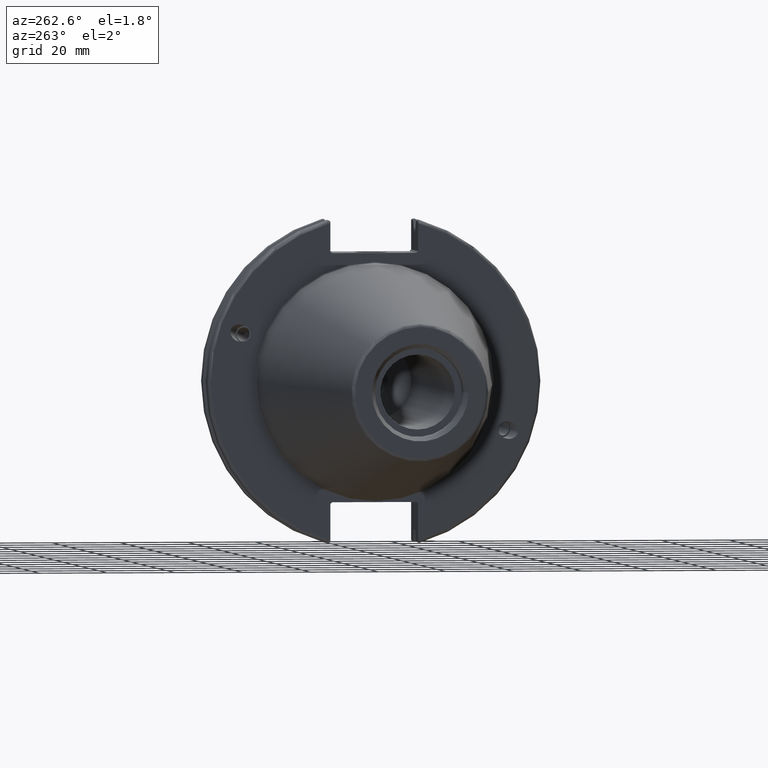
[diagram: clean part render]
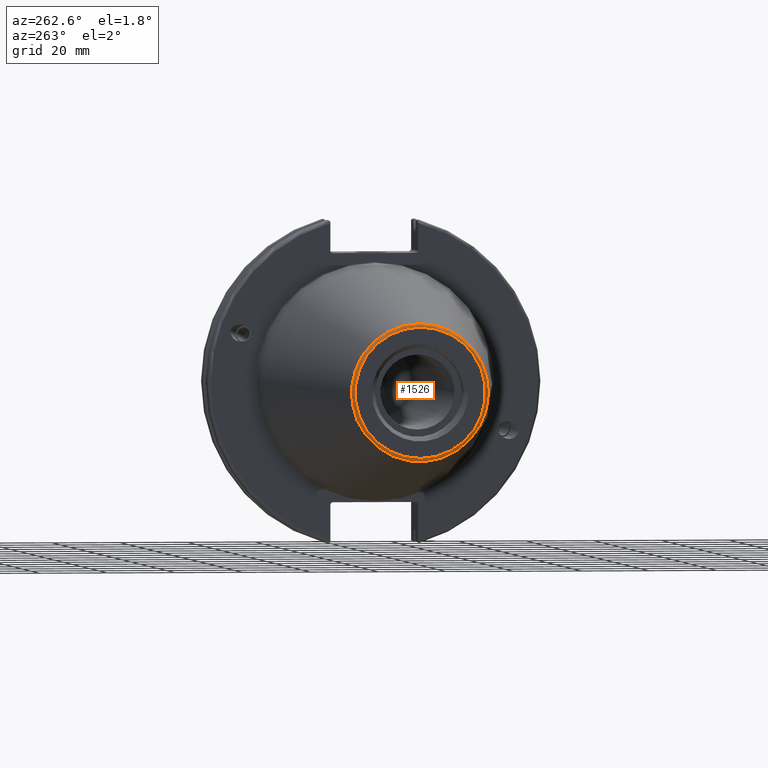
[diagram: same view with one face highlighted and labeled with its STEP entity id]
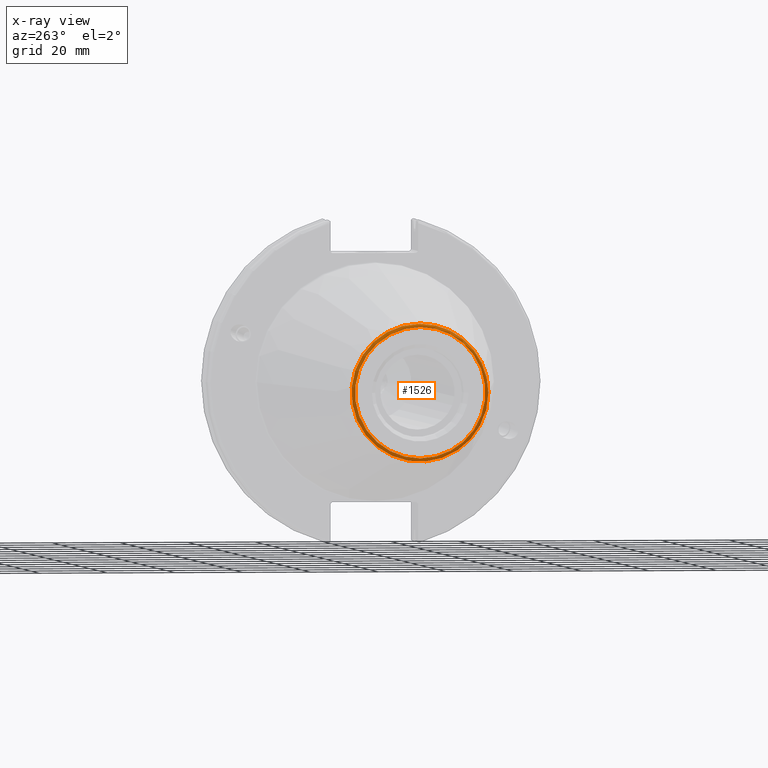
[diagram: x-ray of the same camera — body ghosted, the highlighted face saturated]
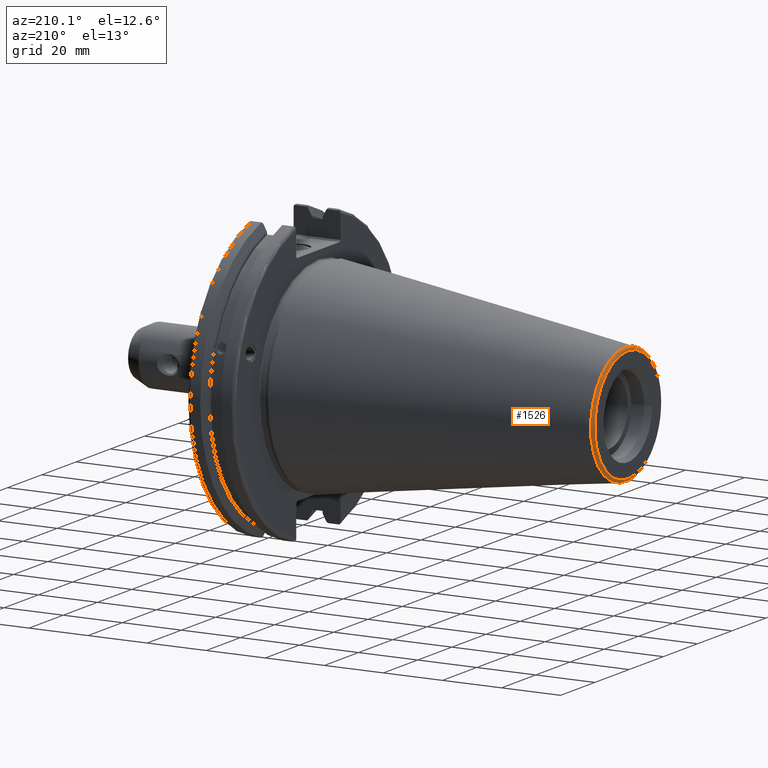
[diagram: same view with one face highlighted and labeled with its STEP entity id]
A machine part, auxiliary view. The second image highlights one B-rep face of the part: STEP entity #1526.
The next image is the same camera in x-ray: the body ghosted, the highlighted face saturated — about 0% of this face is hidden behind the body in this view.
A second angle (auxiliary view) of the same face is appended — the face is thin or edge-on in the first view.
In plain terms, the highlighted toroidal blend (fillet) surface has major radius 19.2436 mm and minor (blend) radius 1 mm.
Its self-contained STEP definition (entity closure, byte-faithful):
#97=TOROIDAL_SURFACE('',#1696,19.2435889303637,1.);
#178=FACE_OUTER_BOUND('',#280,.T.);
#280=EDGE_LOOP('',(#1320,#1321,#1322,#1323,#1324));
#374=CIRCLE('',#1697,20.233121911427);
#375=CIRCLE('',#1698,20.233121911427);
#376=CIRCLE('',#1699,1.);
#377=CIRCLE('',#1700,19.2435889303637);
#759=VERTEX_POINT('',#3102);
#760=VERTEX_POINT('',#3103);
#761=VERTEX_POINT('',#3106);
#964=EDGE_CURVE('',#759,#760,#374,.T.);
#965=EDGE_CURVE('',#760,#759,#375,.T.);
#966=EDGE_CURVE('',#759,#761,#376,.T.);
#967=EDGE_CURVE('',#761,#761,#377,.T.);
#1320=ORIENTED_EDGE('',*,*,#964,.T.);
#1321=ORIENTED_EDGE('',*,*,#965,.T.);
#1322=ORIENTED_EDGE('',*,*,#966,.T.);
#1323=ORIENTED_EDGE('',*,*,#967,.T.);
#1324=ORIENTED_EDGE('',*,*,#966,.F.);
#1526=ADVANCED_FACE('',(#178),#97,.T.);
#1696=AXIS2_PLACEMENT_3D('',#3101,#2053,#2054);
#1697=AXIS2_PLACEMENT_3D('',#3104,#2055,#2056);
#1698=AXIS2_PLACEMENT_3D('',#3105,#2057,#2058);
#1699=AXIS2_PLACEMENT_3D('',#3107,#2059,#2060);
#1700=AXIS2_PLACEMENT_3D('',#3108,#2061,#2062);
#2053=DIRECTION('center_axis',(1.,0.,0.));
#2054=DIRECTION('ref_axis',(0.,0.,-1.));
#2055=DIRECTION('center_axis',(-1.,0.,0.));
#2056=DIRECTION('ref_axis',(0.,-1.,3.06161699786838E-17));
#2057=DIRECTION('center_axis',(-1.,0.,0.));
#2058=DIRECTION('ref_axis',(0.,-1.,3.06161699786838E-17));
#2059=DIRECTION('center_axis',(0.,-1.,-1.22464679914735E-16));
#2060=DIRECTION('ref_axis',(0.,-1.22464679914735E-16,1.));
#2061=DIRECTION('center_axis',(1.,0.,0.));
#2062=DIRECTION('ref_axis',(0.,-1.,1.83697019872103E-16));
#3101=CARTESIAN_POINT('Origin',(-100.6,0.,0.));
#3102=CARTESIAN_POINT('',(-100.744306893072,-2.47784279855872E-15,20.233121911427));
#3103=CARTESIAN_POINT('',(-100.744306893072,-20.233121911427,-2.47784279855872E-15));
#3104=CARTESIAN_POINT('Origin',(-100.744306893072,0.,-3.09730349819841E-15));
#3105=CARTESIAN_POINT('Origin',(-100.744306893072,0.,-3.09730349819841E-15));
#3106=CARTESIAN_POINT('',(-101.6,-2.35665995876774E-15,19.2435889303637));
#3107=CARTESIAN_POINT('Origin',(-100.6,-2.35665995876774E-15,19.2435889303637));
#3108=CARTESIAN_POINT('Origin',(-101.6,0.,0.));